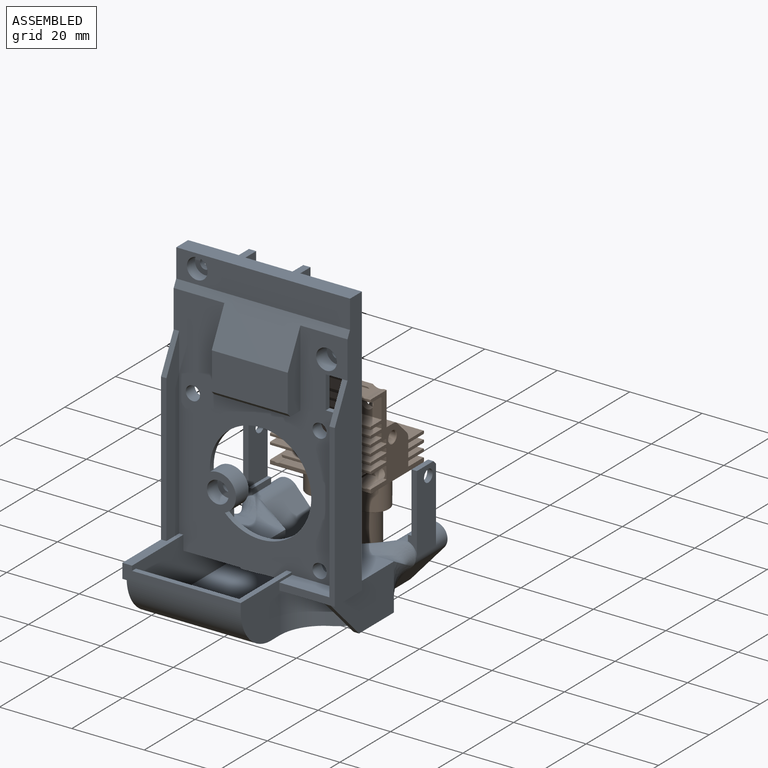
[diagram: assembled view]
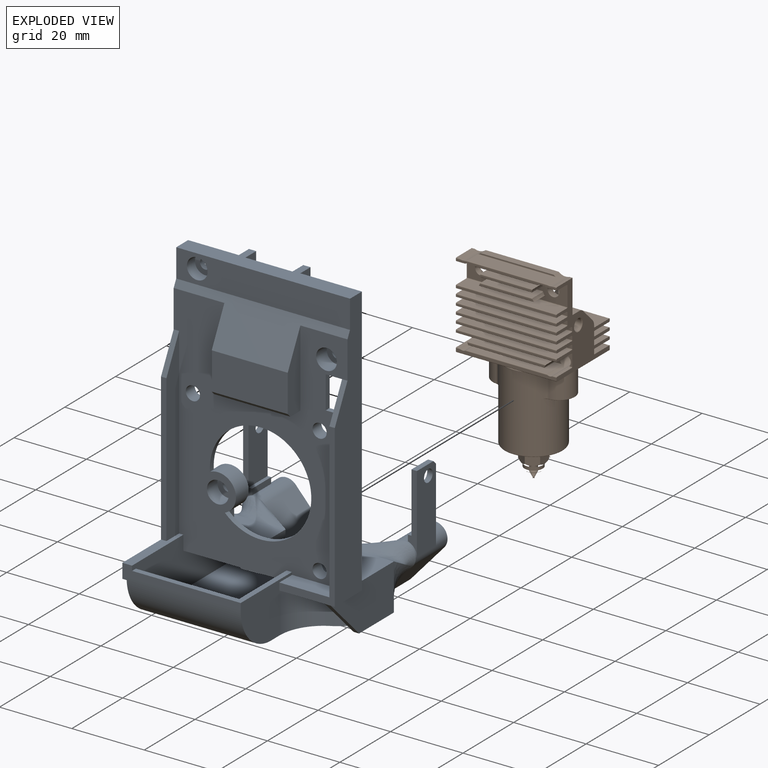
[diagram: exploded view]
GUIDED TOUR — FREECAD ASSEMBLY "k1_toolhead_cover_experimental"

This assembly has 2 components, labeled P0..P1 below (a component is one placed body or linked part; the same part can appear more than once), held together by 0 modeled joints plus 1 derived contact edge. A joint is a constraint between two components; its type names the relative motion it leaves free:
  CONTACT — a derived adjacency edge — the two components touch in the source model (clearance under 2% of the assembly's diagonal); it is measured from the geometry, not a modeled constraint.
Axis/direction vectors are unit vectors and 'through' points are millimeter coordinates, both in the assembly's world frame.

MATES
  1. CONTACT "contact_0_1": P0 <-> P1, contact direction (0.000, 1.000, 0.000) through (359.54, 133.63, -121.42) mm (derived from contact, not a modeled constraint)

ASSEMBLY ORDER
  1. P0 — the base component [order verified]
  2. P1 [order verified]
Order-tag legend:
  [order verified] — this step's position reverses a verified removal order: the component was checked to insert without passing through the ones already placed.

Of the 2 components, 1 carries a construction recipe — the FreeCAD feature program (sketches with constraints, then the solid features that consume them) that regenerates the part from scratch, quoted from this document or from the linked companion document it references; the rest are supplied as boundary geometry only. The tour below walks the components in assembly order: each is shown spotlighted twice — in the assembled view, then in the exploded view, where a leader line traces a displaced component back to its assembled socket (components that stay in place when exploded have no leader line; saturated green if recipe-attached, orange if geometry-only; every other component desaturated gray) — followed by its recipe or geometry summary and the mates that hold it.
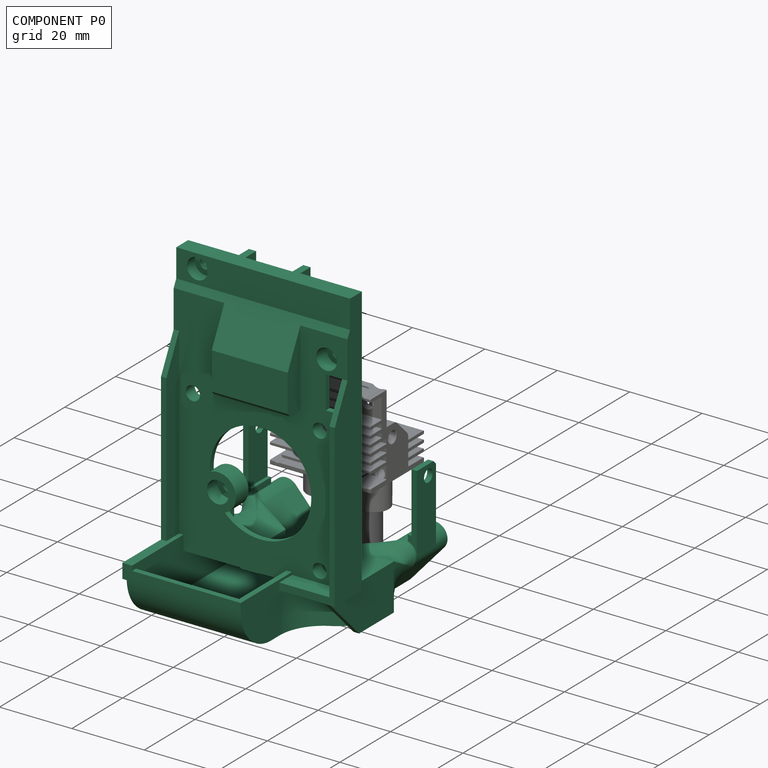
[diagram: component P0 — assembled]
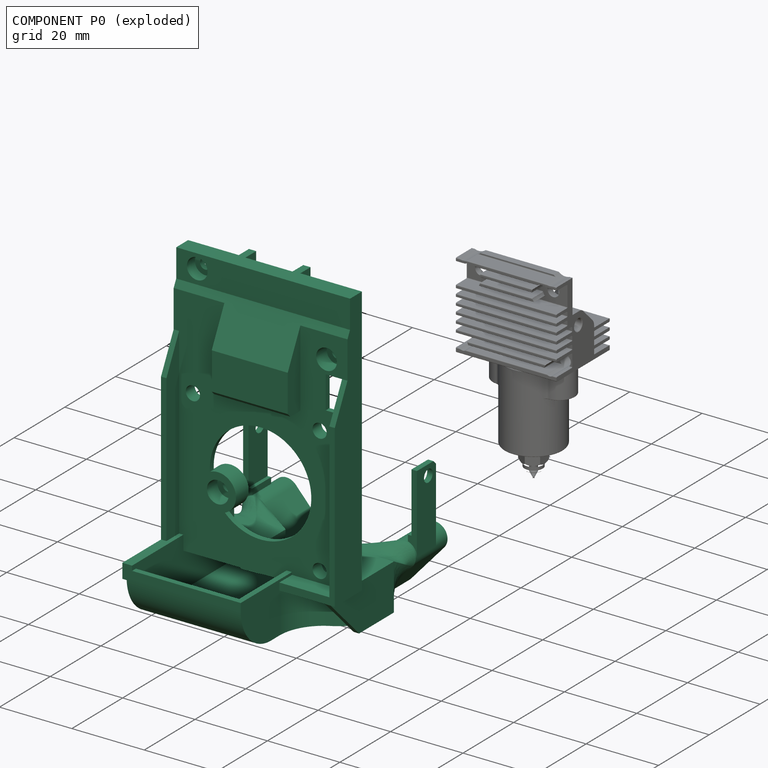
[diagram: component P0 — exploded]
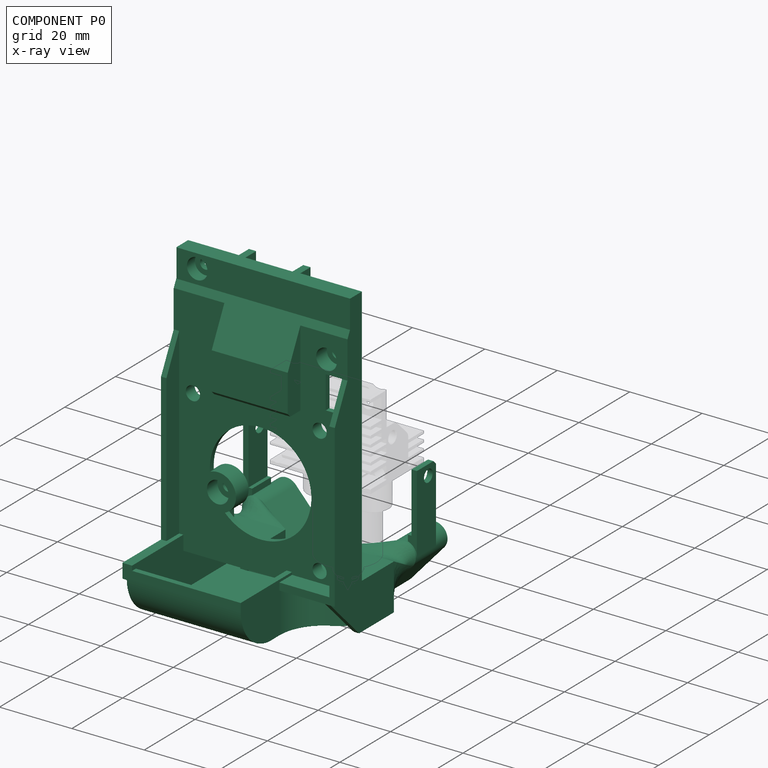
[diagram: component P0 — x-ray view]
COMPONENT P0 — recipe-attached ("k1_toolhead_cover_experimental_part", modeled in this document).
Held by: resting contact with P1 (derived edge).
Construction recipe (the document's own serialized feature program — sketch geometry with constraints, then the solid features built on it; lengths are millimeters unless a unit is written):

FEATURE [PartDesign::FeatureBase] BaseFeature
  BaseFeature = -> Part__Feature
  Suppressed = false
FEATURE [Sketcher::SketchObject] Sketch
  ArcFitTolerance = 1e-06
  AttachmentSupport = -> [BaseFeature]
  ExternalGeometry = -> [BaseFeature]
  FullyConstrained = true
  MakeInternals = false
  MapMode = 5
  Placement = pos=(-1.13443e-11,1.4794e-12,-1.23535) rot=(1,0,0;3.14159rad)
  sketch-geometry (4):
    g0: LineSegment StartX=272.338 StartY=-64.8746 StartZ=0 EndX=258.183 EndY=-64.8746 EndZ=0
    g1: LineSegment StartX=258.183 StartY=-64.8746 StartZ=0 EndX=258.183 EndY=-78.3846 EndZ=0
    g2: LineSegment StartX=258.183 StartY=-78.3846 StartZ=0 EndX=272.338 EndY=-78.3846 EndZ=0
    g3: LineSegment StartX=272.338 StartY=-78.3846 StartZ=0 EndX=272.338 EndY=-64.8746 EndZ=0
  constraints (11):
    c: Coincident(g0,g1)
    c: Coincident(g1,g2)
    c: Coincident(g2,g3)
    c: Coincident(g3,g0)
    c: Horizontal(g0)
    c: Horizontal(g2)
    c: Vertical(g1)
    c: Vertical(g3)
    c: Coincident(g0,g-3)
    c: Distance(g-3,g0) = 1.5
    c: Distance(g3,g3) = 13.51
FEATURE [PartDesign::Pocket] Pocket
  BaseFeature = -> BaseFeature
  Direction = (9.1831e-12,-1.1975e-12,1)
  Length = 0
  Length2 = 5
  Profile = -> Sketch
  ReferenceAxis = -> Sketch [N_Axis]
  Refine = true
  Suppressed = false
  Type = 3
  UpToFace = -> BaseFeature [Face125]
FEATURE [PartDesign::Pad] Pad
  BaseFeature = -> Pocket
  Direction = (0,-1,-1.1975e-12)
  Length = 10
  Length2 = 10
  Profile = -> Pocket [Face85]
  Refine = true
  Suppressed = false
  Type = 3
  UpToFace = -> Pocket [Face83]
FEATURE [Sketcher::SketchObject] Sketch001
  ArcFitTolerance = 1e-06
  AttachmentSupport = -> [Pad]
  ExternalGeometry = -> [Pad]
  FullyConstrained = true
  MakeInternals = false
  MapMode = 5
  Placement = pos=(-1.12613e-11,1.2372e-12,-1.23535) rot=(1,0,0;3.14159rad)
  sketch-geometry (6):
    g0: ArcOfCircle CenterX=271.921 CenterY=-64.8746 CenterZ=0 NormalX=0 NormalY=0 NormalZ=1 AngleXU=0 Radius=12.2386 StartAngle=3.14159 EndAngle=4.22794
    g1: ArcOfCircle CenterX=259.583 CenterY=-88.3196 CenterZ=0 NormalX=0 NormalY=0 NormalZ=1 AngleXU=0 Radius=14.255 StartAngle=0.771133 EndAngle=1.08635
    g2: LineSegment StartX=259.683 StartY=-64.8746 StartZ=0 EndX=258.183 EndY=-64.8746 EndZ=0
    g3: LineSegment StartX=269.805 StartY=-78.3846 StartZ=0 EndX=268.729 EndY=-79.4301 EndZ=0
    g4: ArcOfCircle CenterX=271.921 CenterY=-64.8746 CenterZ=0 NormalX=0 NormalY=0 NormalZ=1 AngleXU=0 Radius=13.7386 StartAngle=3.14159 EndAngle=4.22794
    g5: ArcOfCircle CenterX=259.583 CenterY=-88.3196 CenterZ=0 NormalX=0 NormalY=0 NormalZ=1 AngleXU=0 Radius=12.755 StartAngle=0.771133 EndAngle=1.08635
  constraints (15):
    c: Coincident(g0,g-4)
    c: Tangent(g0,g-3) = 1.5708
    c: Coincident(g1,g-3)
    c: Tangent(g1,g0) = 1.5708
    c: Coincident(g2,g0)
    c: Horizontal(g2)
    c: Coincident(g3,g1)
    c: Perpendicular(g1,g3)
    c: Coincident(g4,g0)
    c: Coincident(g4,g2)
    c: Coincident(g5,g1)
    c: Coincident(g5,g3)
    c: Equal(g2,g3)
    c: Tangent(g5,g4) = 1.5708
    c: Distance(g2,g2) = 1.5
FEATURE [PartDesign::Pad] Pad001
  BaseFeature = -> Pad
  Direction = (-9.1158e-12,1.0015e-12,-1)
  Length = 10
  Length2 = 10
  Profile = -> Sketch001
  ReferenceAxis = -> Sketch001 [N_Axis]
  Refine = true
  Suppressed = false
  Type = 3
  UpToFace = -> Pad [Face55]
FEATURE [Sketcher::SketchObject] Sketch002
  ArcFitTolerance = 1e-06
  AttachmentSupport = -> [Pad001]
  ExternalGeometry = -> [Pad001]
  FullyConstrained = true
  MakeInternals = false
  MapMode = 5
  Placement = pos=(-1.12613e-11,1.2372e-12,-1.23535) rot=(1,0,0;3.14159rad)
  sketch-geometry (4):
    g0: LineSegment StartX=259.683 StartY=-64.8746 StartZ=0 EndX=269.805 EndY=-64.8746 EndZ=0
    g1: LineSegment StartX=269.805 StartY=-78.3846 StartZ=0 EndX=269.805 EndY=-64.8746 EndZ=0
    g2: ArcOfCircle CenterX=271.921 CenterY=-64.8746 CenterZ=0 NormalX=0 NormalY=0 NormalZ=1 AngleXU=0 Radius=12.2386 StartAngle=3.1416 EndAngle=4.22794
    g3: ArcOfCircle CenterX=259.583 CenterY=-88.3197 CenterZ=0 NormalX=0 NormalY=0 NormalZ=1 AngleXU=0 Radius=14.2551 StartAngle=0.771134 EndAngle=1.08635
  constraints (9):
    c: Coincident(g0,g-7)
    c: Coincident(g0,g-5)
    c: Coincident(g1,g-6)
    c: Coincident(g1,g0)
    c: Coincident(g2,g0)
    c: Coincident(g3,g1)
    c: Tangent(g3,g-6)
    c: Coincident(g2,g-7)
    c: Tangent(g3,g2) = 1.5708
FEATURE [PartDesign::Pocket] Pocket001
  BaseFeature = -> Pad001
  Direction = (9.1158e-12,-1.0015e-12,1)
  Length = 0
  Length2 = 5
  Profile = -> Sketch002
  ReferenceAxis = -> Sketch002 [N_Axis]
  Refine = true
  Suppressed = false
  Type = 3
  UpToFace = -> Pad001 [Face130]
FEATURE [Sketcher::SketchObject] Sketch003
  ArcFitTolerance = 1e-06
  AttachmentSupport = -> [Pocket001]
  ExternalGeometry = -> [Pocket001]
  FullyConstrained = true
  MakeInternals = false
  MapMode = 5
  Placement = pos=(-1.12613e-11,1.2372e-12,-1.23535) rot=(1,0,0;3.14159rad)
  sketch-geometry (4):
    g0: LineSegment StartX=243.928 StartY=-75.5646 StartZ=0 EndX=243.928 EndY=-89.8196 EndZ=0
    g1: LineSegment StartX=243.928 StartY=-89.8196 StartZ=0 EndX=259.583 EndY=-89.8196 EndZ=0
    g2: LineSegment StartX=259.583 StartY=-89.8196 StartZ=0 EndX=259.583 EndY=-75.5646 EndZ=0
    g3: LineSegment StartX=259.583 StartY=-75.5646 StartZ=0 EndX=243.928 EndY=-75.5646 EndZ=0
  constraints (11):
    c: Coincident(g0,g1)
    c: Coincident(g1,g2)
    c: Coincident(g2,g3)
    c: Coincident(g3,g0)
    c: Vertical(g0)
    c: Vertical(g2)
    c: Horizontal(g1)
    c: Horizontal(g3)
    c: Coincident(g0,g-3)
    c: PointOnObject(g-3,g1)
    c: PointOnObject(g-4,g2)
FEATURE [PartDesign::Pocket] Pocket002
  BaseFeature = -> Pocket001
  Direction = (9.1158e-12,-1.0015e-12,1)
  Length = 15
  Length2 = 5
  Profile = -> Sketch003
  ReferenceAxis = -> Sketch003 [N_Axis]
  Refine = true
  Suppressed = false
  Type = 0
FEATURE [Sketcher::SketchObject] Sketch004
  ArcFitTolerance = 1e-06
  AttachmentSupport = -> [Pocket002]
  ExternalGeometry = -> [Pocket002]
  FullyConstrained = true
  MakeInternals = false
  MapMode = 5
  Placement = pos=(-1.12613e-11,1.2372e-12,-1.23535) rot=(1,0,0;3.14159rad)
  sketch-geometry (4):
    g0: LineSegment StartX=243.928 StartY=-75.5646 StartZ=0 EndX=258.183 EndY=-89.8196 EndZ=0
    g1: LineSegment StartX=259.583 StartY=-89.8196 StartZ=0 EndX=245.428 EndY=-75.5646 EndZ=0
    g2: LineSegment StartX=258.183 StartY=-89.8196 StartZ=0 EndX=259.583 EndY=-89.8196 EndZ=0
    g3: LineSegment StartX=243.928 StartY=-75.5646 StartZ=0 EndX=245.428 EndY=-75.5646 EndZ=0
  constraints (8):
    c: Coincident(g0,g-6)
    c: Coincident(g0,g-4)
    c: Coincident(g1,g-5)
    c: Coincident(g1,g-3)
    c: Coincident(g2,g0)
    c: Coincident(g2,g1)
    c: Coincident(g3,g0)
    c: Coincident(g3,g1)
FEATURE [PartDesign::Pad] Pad002
  BaseFeature = -> Pocket002
  Direction = (-9.1158e-12,1.0015e-12,-1)
  Length = 10
  Length2 = 10
  Profile = -> Sketch004
  ReferenceAxis = -> Sketch004 [N_Axis]
  Refine = true
  Reversed = true
  Suppressed = false
  Type = 3
  UpToFace = -> Pocket002 [Face73]
FEATURE [PartDesign::Pad] Pad003
  BaseFeature = -> Pad002
  Direction = (9.1158e-12,-1.0015e-12,1)
  Length = 1.5
  Length2 = 10
  Profile = -> Pad002 [Edge451,Edge302,Edge305]
  Refine = true
  Suppressed = false
  Type = 0
FEATURE [PartDesign::Pad] Pad004
  BaseFeature = -> Pad003
  Direction = (5.21e-14,5.613e-13,1)
  Length = 1.5
  Length2 = 10
  Profile = -> Pad003 [Edge294,Edge293,Edge295]
  Refine = true
  Reversed = true
  Suppressed = false
  Type = 0
FEATURE [PartDesign::Plane] DatumPlane
  AttachmentSupport = -> [Pad004]
  Length = 336.277
  MapMode = 5
  Placement = pos=(-5.131e-13,96.8196,-5.13309e-11) rot=(1,0,0;1.5708rad)
  ResizeMode = 0
  Width = 145.924
FEATURE [PartDesign::Pad] Pad005
  BaseFeature = -> Pad004
  Direction = (1.15e-14,1,-5.421e-13)
  Length = 10
  Length2 = 10
  Profile = -> Pad004 [Face11,Face156]
  Refine = true
  Suppressed = false
  Type = 3
  UpToFace = -> Pad004 [Face13]
FEATURE [Sketcher::SketchObject] Sketch005
  ArcFitTolerance = 1e-06
  AttachmentSupport = -> [DatumPlane]
  ExternalGeometry = -> [Pad005]
  FullyConstrained = true
  MakeInternals = false
  MapMode = 5
  Placement = pos=(-5.131e-13,96.8196,-5.13309e-11) rot=(1,0,0;1.5708rad)
  sketch-geometry (4):
    g0: ArcOfCircle CenterX=271.503 CenterY=9.97853 CenterZ=0 NormalX=0 NormalY=0 NormalZ=1 AngleXU=0 Radius=2.5 StartAngle=5.55241 EndAngle=8.694
    g1: LineSegment StartX=273.364 StartY=8.30991 StartZ=0 EndX=267.357 EndY=1.608 EndZ=0
    g2: LineSegment StartX=269.641 StartY=11.6471 StartZ=0 EndX=263.634 EndY=4.94523 EndZ=0
    g3: LineSegment StartX=267.357 StartY=1.608 StartZ=0 EndX=263.634 EndY=4.94523 EndZ=0
  constraints (10):
    c: Coincident(g0,g-5)
    c: Coincident(g0,g-5)
    c: Coincident(g1,g0)
    c: PointOnObject(g1,g-4)
    c: PointOnObject(g2,g-3)
    c: Coincident(g3,g1)
    c: Coincident(g3,g2)
    c: Equal(g2,g1)
    c: Tangent(g2,g0) = -1.5708
    c: Distance(g2,g2) = 9
FEATURE [PartDesign::Groove] Groove
  Angle = 180
  Angle2 = 60
  Axis = (-0.744657,3.5e-13,0.667447)
  Base = (267.357,96.8196,1.608)
  BaseFeature = -> Pad005
  Profile = -> Sketch005
  ReferenceAxis = -> Sketch005 [Edge3]
  Refine = true
  Suppressed = false
  Type = 0
FEATURE [Sketcher::SketchObject] Sketch006
  ArcFitTolerance = 1e-06
  AttachmentSupport = -> [DatumPlane]
  ExternalGeometry = -> [Groove]
  FullyConstrained = true
  MakeInternals = false
  MapMode = 5
  Placement = pos=(-5.131e-13,96.8196,-5.13309e-11) rot=(1,0,0;1.5708rad)
  sketch-geometry (4):
    g0: ArcOfCircle CenterX=230.503 CenterY=9.97851 CenterZ=0 NormalX=0 NormalY=0 NormalZ=1 AngleXU=0 Radius=2.5 StartAngle=0.730775 EndAngle=3.87237
    g1: LineSegment StartX=232.364 StartY=11.6471 StartZ=0 EndX=238.371 EndY=4.94521 EndZ=0
    g2: LineSegment StartX=228.641 StartY=8.3099 StartZ=0 EndX=234.648 EndY=1.60798 EndZ=0
    g3: LineSegment StartX=234.648 StartY=1.60798 StartZ=0 EndX=238.371 EndY=4.94521 EndZ=0
  constraints (10):
    c: Coincident(g0,g-4)
    c: Coincident(g0,g-5)
    c: PointOnObject(g1,g-4)
    c: Coincident(g2,g0)
    c: PointOnObject(g2,g-5)
    c: Coincident(g3,g2)
    c: Coincident(g3,g1)
    c: Equal(g1,g2)
    c: Tangent(g1,g0) = 1.5708
    c: Distance(g1,g1) = 9
FEATURE [PartDesign::Groove] Groove001
  Angle = 180
  Angle2 = 60
  Axis = (0.744657,3.579e-13,0.667447)
  Base = (234.648,96.8196,1.60798)
  BaseFeature = -> Groove
  Profile = -> Sketch006
  ReferenceAxis = -> Sketch006 [Edge3]
  Refine = true
  Reversed = true
  Suppressed = false
  Type = 0
FEATURE [PartDesign::Pocket] Pocket003
  BaseFeature = -> Groove001
  Direction = (-1.15e-14,-1,5.421e-13)
  Length = 3
  Length2 = 5
  Profile = -> Groove001 [Face5,Face143]
  Refine = true
  Suppressed = false
  Type = 0
FEATURE [Sketcher::SketchObject] Sketch007
  ArcFitTolerance = 1e-06
  AttachmentSupport = -> [Pocket003]
  ExternalGeometry = -> [Pocket003]
  FullyConstrained = true
  MakeInternals = false
  MapMode = 5
  Placement = pos=(275.003,-1.05013e-10,4.66679e-11) rot=(0.57735,0.57735,0.57735;2.0944rad)
  sketch-geometry (4):
    g0: LineSegment StartX=69.8746 StartY=74.8682 StartZ=0 EndX=70.8746 EndY=76.8482 EndZ=0
    g1: LineSegment StartX=70.8746 StartY=76.8482 StartZ=0 EndX=70.8746 EndY=84.65 EndZ=0
    g2: LineSegment StartX=70.8746 StartY=84.65 StartZ=0 EndX=69.8746 EndY=84.65 EndZ=0
    g3: LineSegment StartX=69.8746 StartY=84.65 StartZ=0 EndX=69.8746 EndY=74.8682 EndZ=0
  constraints (10):
    c: Coincident(g0,g-5)
    c: Coincident(g1,g0)
    c: PointOnObject(g1,g-3)
    c: Vertical(g1)
    c: Coincident(g2,g1)
    c: Coincident(g2,g-4)
    c: Coincident(g3,g2)
    c: Coincident(g3,g0)
    c: Parallel(g0,g-5)
    c: Distance(g0,g3) = 1
FEATURE [PartDesign::Pocket] Pocket004
  BaseFeature = -> Pocket003
  Direction = (-1,3.819e-13,-1.696e-13)
  Length = 5
  Length2 = 5
  Profile = -> Sketch007
  ReferenceAxis = -> Sketch007 [N_Axis]
  Refine = true
  Suppressed = false
  Type = 1
FEATURE [Sketcher::SketchObject] Sketch008
  ArcFitTolerance = 1e-06
  AttachmentSupport = -> [Pocket004]
  ExternalGeometry = -> [Pocket004]
  FullyConstrained = false
  MakeInternals = false
  MapMode = 5
  Placement = pos=(-1.17608e-11,2.2789e-12,-1.23535) rot=(1,0,0;3.14159rad)
  sketch-geometry (2):
    g0: LineSegment [constr] StartX=242.453 StartY=-96.8196 StartZ=0 EndX=259.552 EndY=-96.8196 EndZ=0
    g1: LineSegment StartX=251.003 StartY=-96.8196 StartZ=0 EndX=251.003 EndY=-81.9506 EndZ=0
  constraints (4):
    c: Coincident(g0,g-3)
    c: Coincident(g0,g-4)
    c: Symmetric(g0,g0,g1)
    c: Vertical(g1)
FEATURE [PartDesign::Plane] DatumPlane001
  AttachmentOffset = pos=(0,0,0) rot=(0,1,0;1.5708rad)
  AttachmentSupport = -> [Sketch008]
  Length = 158.592
  MapMode = 7
  Placement = pos=(251.003,96.8196,-1.23535) rot=(-0.57735,0.57735,0.57735;4.18879rad)
  ResizeMode = 0
  Width = 133.922
FEATURE [Sketcher::SketchObject] Sketch009
  ArcFitTolerance = 1e-06
  AttachmentSupport = -> [DatumPlane001]
  FullyConstrained = false
  MakeInternals = false
  MapMode = 5
  Placement = pos=(251.003,96.8196,-1.23535) rot=(0.57735,-0.57735,-0.57735;2.0944rad)
  sketch-geometry (6):
    g0: GeomPoint [constr] X=-7.05 Y=-7 Z=0
    g1: LineSegment StartX=3.17289 StartY=-0.924374 StartZ=0 EndX=4.60908 EndY=-4.65765 EndZ=0
    g2: LineSegment StartX=4.60908 StartY=-4.65765 StartZ=0 EndX=22.96 EndY=-1.8e-15 EndZ=0
    g3: LineSegment StartX=3.17289 StartY=-0.924374 StartZ=0 EndX=22.96 EndY=9.26 EndZ=0
    g4: LineSegment StartX=22.96 StartY=9.26 StartZ=0 EndX=22.96 EndY=-1.8e-15 EndZ=0
    g5: LineSegment [constr] StartX=3.89099 StartY=-2.79101 StartZ=0 EndX=-7.05 EndY=-7 EndZ=0
  constraints (14):
    c: Coincident(g2,g1)
    c: PointOnObject(g2,g-1)
    c: Coincident(g3,g1)
    c: Coincident(g4,g3)
    c: Coincident(g4,g2)
    c: Vertical(g4)
    c: Symmetric(g1,g1,g5)
    c: Coincident(g5,g0)
    c: Distance(g0,g-2) = 7.05
    c: Distance(g0,g-1) = 7
    c: Perpendicular(g1,g5)
    c: Distance(g1,g1) = 4
    c: Distance(g2,g-2) = 22.96
    c: DistanceY(g4,g4) = 9.26
FEATURE [PartDesign::Pad] Pad006
  BaseFeature = -> Pocket004
  Direction = (-1,0,0)
  Length = 14.6
  Length2 = 10
  Midplane = true
  Profile = -> Sketch009
  ReferenceAxis = -> Sketch009 [N_Axis]
  Refine = true
  Suppressed = false
  Type = 0
FEATURE [Sketcher::SketchObject] Sketch010
  ArcFitTolerance = 1e-06
  AttachmentSupport = -> [Pad006]
  ExternalGeometry = -> [Pad006]
  FullyConstrained = true
  MakeInternals = false
  MapMode = 5
  Placement = pos=(242.428,-3.4352e-12,0) rot=(-0.57735,0.57735,0.57735;4.18879rad)
  sketch-geometry (4):
    g0: LineSegment StartX=-61.6346 StartY=0.264649 StartZ=0 EndX=-61.6346 EndY=10.0046 EndZ=0
    g1: LineSegment StartX=-61.6346 StartY=10.0046 StartZ=0 EndX=-73.8596 EndY=10.0046 EndZ=0
    g2: LineSegment StartX=-73.8596 StartY=10.0046 StartZ=0 EndX=-73.8596 EndY=0.264649 EndZ=0
    g3: LineSegment StartX=-73.8596 StartY=0.264649 StartZ=0 EndX=-61.6346 EndY=0.264649 EndZ=0
  constraints (10):
    c: Coincident(g0,g1)
    c: Coincident(g1,g2)
    c: Coincident(g2,g3)
    c: Coincident(g3,g0)
    c: Vertical(g2)
    c: Horizontal(g1)
    c: Horizontal(g3)
    c: Coincident(g0,g-4)
    c: PointOnObject(g1,g-5)
    c: Coincident(g0,g-4)
FEATURE [PartDesign::Pocket] Pocket005
  BaseFeature = -> Pad006
  Direction = (1,-1.42e-14,0)
  Length = 3
  Length2 = 5
  Profile = -> Sketch010
  ReferenceAxis = -> Sketch010 [N_Axis]
  Refine = true
  Suppressed = false
  Type = 0
FEATURE [Sketcher::SketchObject] Sketch011
  ArcFitTolerance = 1e-06
  AttachmentSupport = -> [DatumPlane001]
  ExternalGeometry = -> [Pocket005]
  FullyConstrained = true
  MakeInternals = false
  MapMode = 5
  Placement = pos=(251.003,96.8196,-1.23535) rot=(0.57735,-0.57735,-0.57735;2.0944rad)
  sketch-geometry (4):
    g0: LineSegment StartX=4.42828 StartY=-4.18769 StartZ=0 EndX=22.96 EndY=1.5 EndZ=0
    g1: LineSegment StartX=22.96 StartY=1.5 StartZ=0 EndX=22.96 EndY=8.69747 EndZ=0
    g2: LineSegment StartX=3.35868 StartY=-1.40733 StartZ=0 EndX=22.96 EndY=8.69747 EndZ=0
    g3: LineSegment StartX=4.42828 StartY=-4.18769 StartZ=0 EndX=3.35868 EndY=-1.40733 EndZ=0
  constraints (11):
    c: Coincident(g1,g0)
    c: Vertical(g1)
    c: Coincident(g2,g1)
    c: PointOnObject(g2,g-4)
    c: PointOnObject(g0,g-4)
    c: Distance(g0,g-6) = 0.5
    c: Parallel(g2,g-5)
    c: Coincident(g0,g-3)
    c: Coincident(g3,g0)
    c: Coincident(g3,g2)
    c: Distance(g2,g-5) = 0.5
FEATURE [PartDesign::Pocket] Pocket006
  BaseFeature = -> Pocket005
  Direction = (1,0,0)
  Length = 13
  Length2 = 5
  Midplane = true
  Profile = -> Sketch011
  ReferenceAxis = -> Sketch011 [N_Axis]
  Refine = true
  Suppressed = false
  Type = 0
FEATURE [Sketcher::SketchObject] Sketch012
  ArcFitTolerance = 1e-06
  AttachmentSupport = -> [Pocket006]
  ExternalGeometry = -> [Pocket006]
  FullyConstrained = true
  MakeInternals = false
  MapMode = 5
  Placement = pos=(2.3694e-12,-8.483e-13,0.264649) rot=(0,0,1;0rad)
  sketch-geometry (4):
    g0: LineSegment StartX=258.303 StartY=88.5306 StartZ=0 EndX=258.303 EndY=73.8596 EndZ=0
    g1: LineSegment StartX=258.303 StartY=73.8596 StartZ=0 EndX=244.503 EndY=73.8596 EndZ=0
    g2: LineSegment StartX=244.503 StartY=73.8596 StartZ=0 EndX=244.503 EndY=74.4885 EndZ=0
    g3: LineSegment StartX=244.503 StartY=74.4885 StartZ=0 EndX=258.303 EndY=88.5306 EndZ=0
  constraints (10):
    c: Coincident(g0,g-3)
    c: Vertical(g0)
    c: Coincident(g1,g0)
    c: Coincident(g1,g-5)
    c: Horizontal(g1)
    c: Coincident(g2,g1)
    c: PointOnObject(g2,g-5)
    c: Vertical(g2)
    c: Coincident(g3,g2)
    c: Coincident(g3,g0)
FEATURE [PartDesign::Pocket] Pocket007
  BaseFeature = -> Pocket006
  Direction = (-8.953e-12,3.2055e-12,-1)
  Length = 7.6
  Length2 = 5
  Profile = -> Sketch012
  ReferenceAxis = -> Sketch012 [N_Axis]
  Refine = true
  Reversed = true
  Suppressed = false
  Type = 0
FEATURE [Sketcher::SketchObject] Sketch013
  ArcFitTolerance = 1e-06
  AttachmentSupport = -> [Pocket007]
  ExternalGeometry = -> [Pocket007]
  FullyConstrained = true
  MakeInternals = false
  MapMode = 5
  Placement = pos=(242.428,-3.4352e-12,0) rot=(-0.57735,0.57735,0.57735;4.18879rad)
  sketch-geometry (3):
    g0: LineSegment StartX=-73.8596 StartY=7.46212 StartZ=0 EndX=-73.8596 EndY=0.264649 EndZ=0
    g1: LineSegment StartX=-87.8213 StartY=0.264649 StartZ=0 EndX=-73.8596 EndY=7.46212 EndZ=0
    g2: LineSegment StartX=-87.8213 StartY=0.264649 StartZ=0 EndX=-73.8596 EndY=0.264649 EndZ=0
  constraints (8):
    c: Vertical(g0)
    c: PointOnObject(g1,g-3)
    c: Coincident(g1,g0)
    c: PointOnObject(g1,g-5)
    c: Coincident(g2,g1)
    c: Coincident(g2,g0)
    c: Horizontal(g2)
    c: Coincident(g0,g-4)
FEATURE [PartDesign::Pocket] Pocket008
  BaseFeature = -> Pocket007
  Direction = (1,-1.42e-14,0)
  Length = 5
  Length2 = 5
  Profile = -> Sketch013
  ReferenceAxis = -> Sketch013 [N_Axis]
  Refine = true
  Suppressed = false
  Type = 0
FEATURE [PartDesign::Body] Body  label="k1_toolhead_cover_experimental"
  AllowCompound = false
  BaseFeature = -> Part__Feature
  Group = -> [BaseFeature,Sketch,Pocket,Pad,Sketch001,Pad001,Sketch002,Pocket001,Sketch003,Pocket002,Sketch004,Pad002,Pad003,Pad004,DatumPlane,Pad005,Sketch005,Groove,Sketch006,Groove001,Pocket003,Sketch007,Pocket004,Sketch008,DatumPlane001,Sketch009,Pad006,Sketch010,Pocket005,Sketch011,Pocket006,Sketch012,Pocket007,Sketch013,Pocket008]
  Origin = -> Origin
  Tip = -> Pocket008
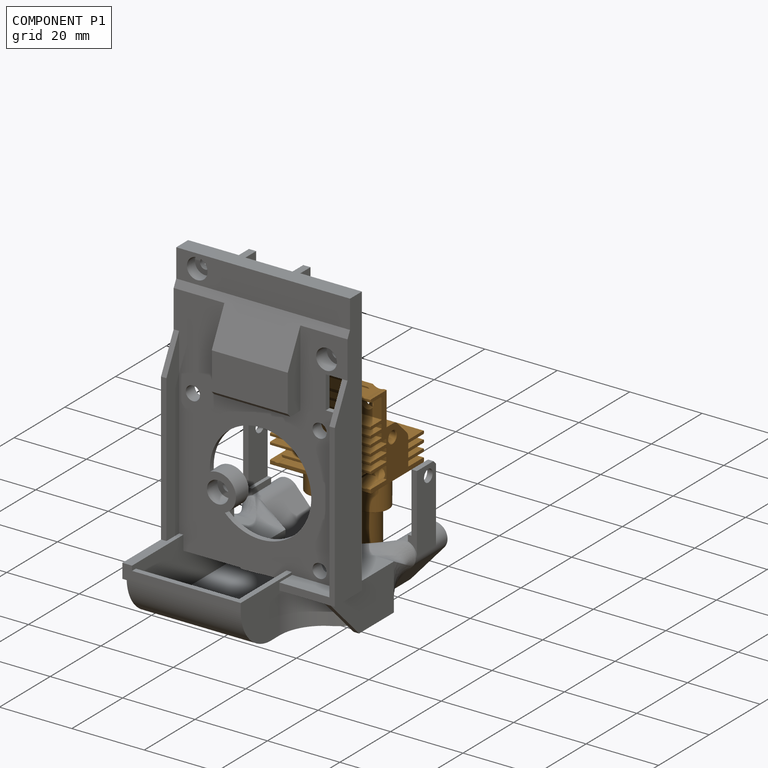
[diagram: component P1 — assembled]
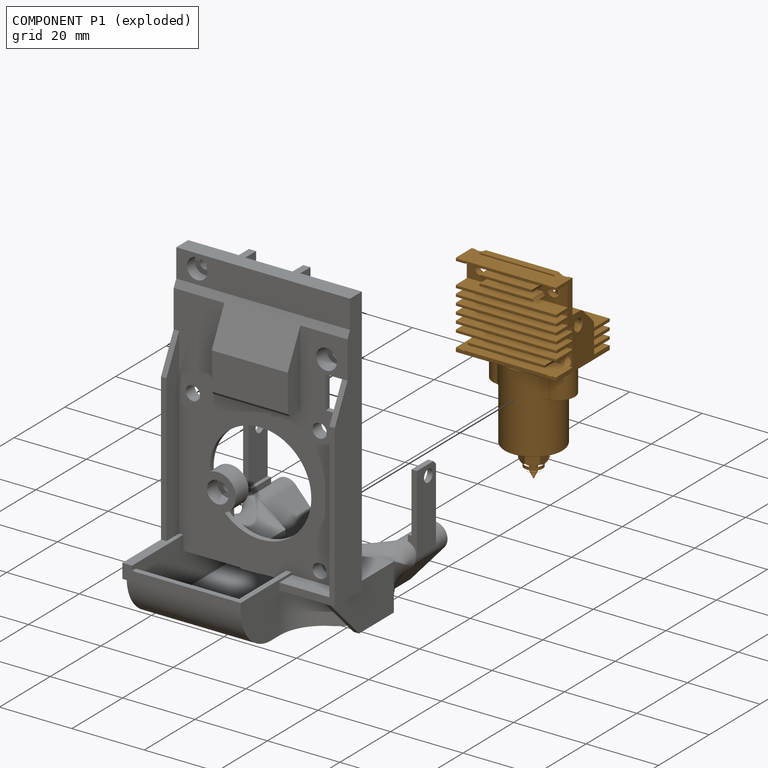
[diagram: component P1 — exploded]
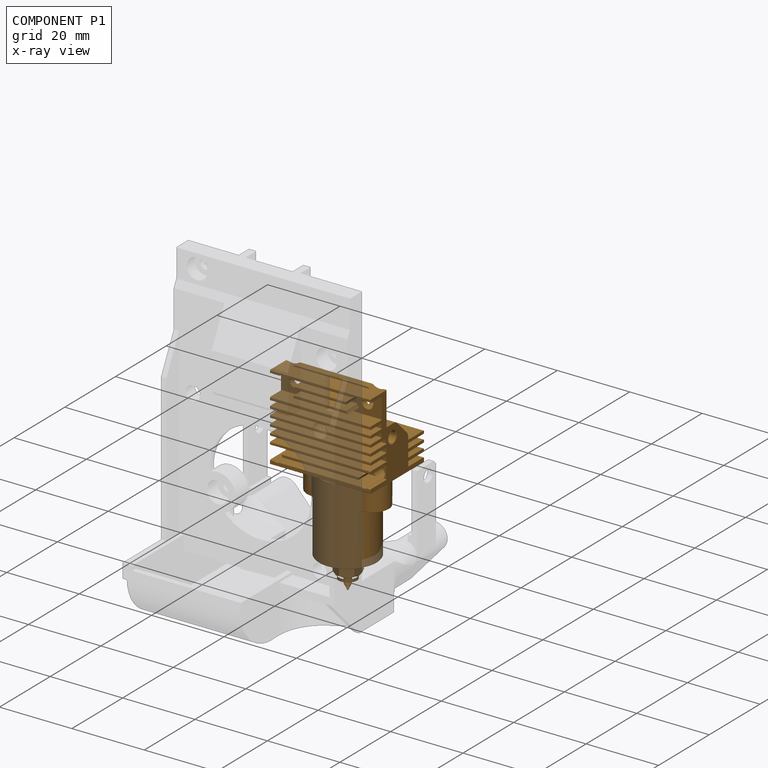
[diagram: component P1 — x-ray view]
COMPONENT P1 — geometry summary ("cad hotend_link"; no construction recipe available for this part):
  bounding box: 56.0 x 27.8 x 21.0 mm
  tessellated surface: 222,783 triangles
  volume: 9692 mm^3 (30% of its bounding box)
  symmetry: mirror-symmetric across its x mid-plane
Held by: resting contact with P0 (derived edge).
PROVENANCE & LICENSES
Assembly and component geometry: a FreeCAD (.FCStd) document from a public repository crawl; components, placements and joints were extracted with FreeCAD and each solid tessellated.
Construction recipes: the document's own serialized feature recipes (and, for linked parts, the recipes of companion documents from the same project).
License: as declared in the source repository (recorded in the dataset sidecar).
Joints: native FreeCAD joints and A2plus constraints are mapped to standard mate types; edges marked 'derived from contact' connect touching components and are measured from the geometry, not modeled.
Verification: 1 of this assembly's 2 components carries a construction recipe (1 from this document itself); the rest are geometry-only. Every component's tessellation passed the extraction mesh gates (mesh-volume checksum against the B-rep where available, bounding-box inflation <= 2%).
Renders: orthographic iso camera (az 35 / el 25); the floor grid conveys scale (grid pitch printed in each image; no ruler). In the exploded view each component is displaced by its stored offset vector: the offsets alone carry the explosion direction (mate normal/axis signs are not orientation cues and do not encode it), and separation distances are assigned per mate-chain, not proportionally to assembly-order depth.
